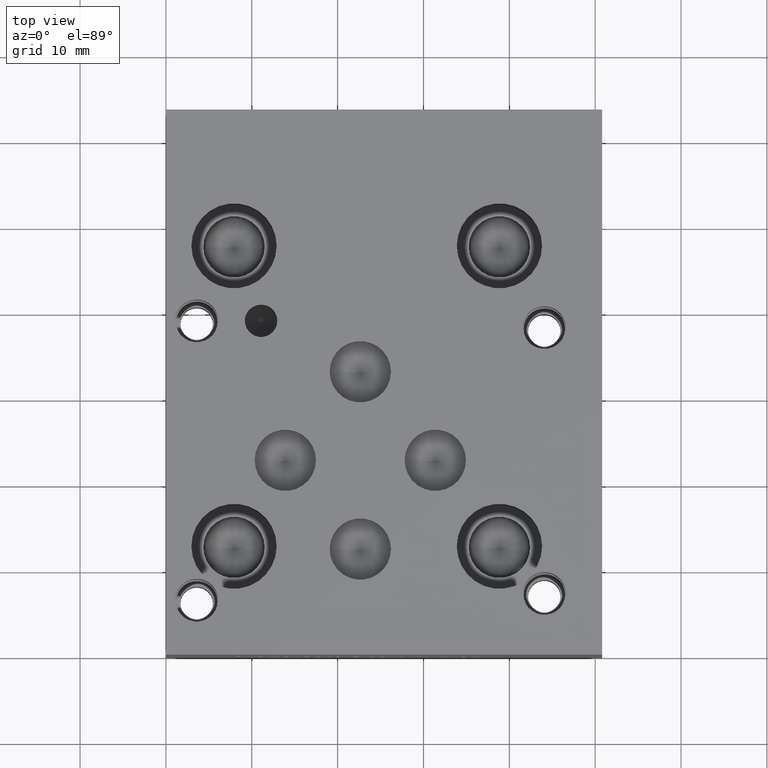
[diagram: clean part render]
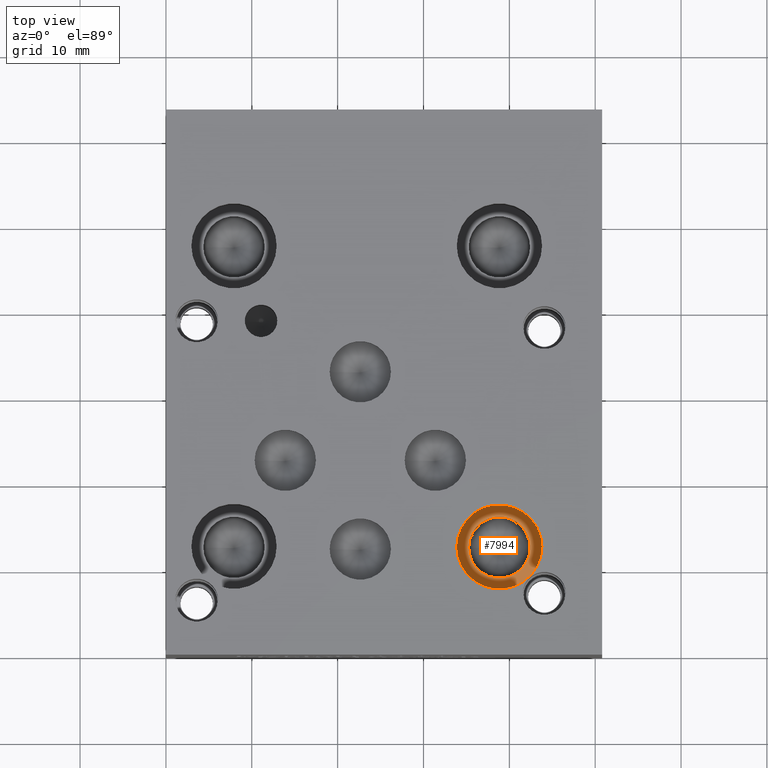
[diagram: same view with one face highlighted and labeled with its STEP entity id]
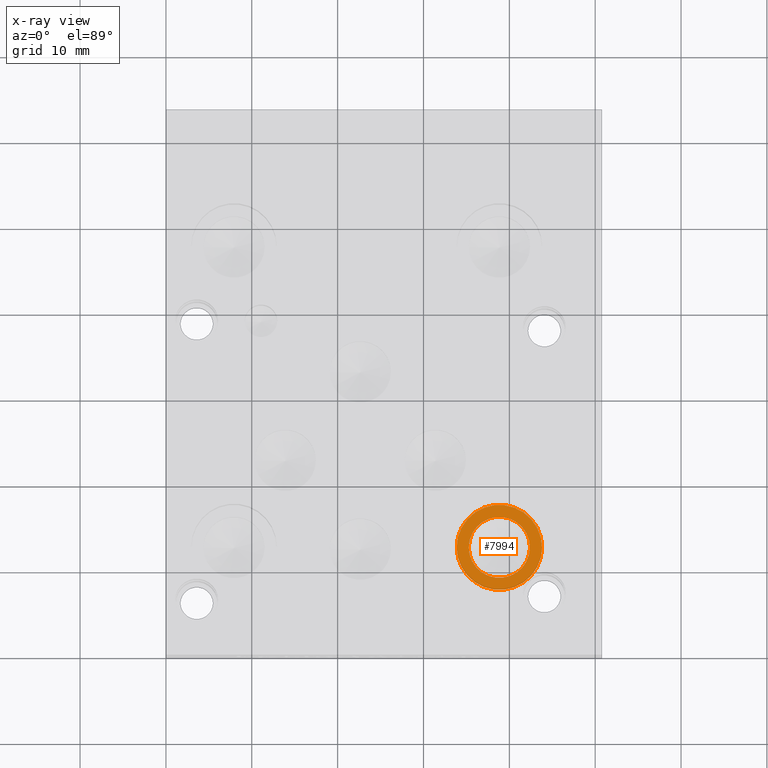
[diagram: x-ray of the same camera — body ghosted, the highlighted face saturated]
A machine part, top view. The second image highlights one B-rep face of the part: STEP entity #7994.
The next image is the same camera in x-ray: the body ghosted, the highlighted face saturated — about 0% of this face is hidden behind the body in this view.
In plain terms, the highlighted planar face has unit normal (0, 0, 1).
Its self-contained STEP definition (entity closure, byte-faithful):
#105=CIRCLE('',#8393,4.9657);
#106=CIRCLE('',#8394,4.9657);
#107=CIRCLE('',#8395,3.5687);
#247=FACE_BOUND('',#1355,.T.);
#913=FACE_OUTER_BOUND('',#1354,.T.);
#1354=EDGE_LOOP('',(#6813,#6814));
#1355=EDGE_LOOP('',(#6815));
#3679=VERTEX_POINT('',#13402);
#3680=VERTEX_POINT('',#13403);
#3681=VERTEX_POINT('',#13406);
#4751=EDGE_CURVE('',#3679,#3680,#105,.T.);
#4752=EDGE_CURVE('',#3680,#3679,#106,.T.);
#4753=EDGE_CURVE('',#3681,#3681,#107,.T.);
#6813=ORIENTED_EDGE('',*,*,#4751,.T.);
#6814=ORIENTED_EDGE('',*,*,#4752,.T.);
#6815=ORIENTED_EDGE('',*,*,#4753,.F.);
#7302=PLANE('',#8392);
#7994=ADVANCED_FACE('',(#913,#247),#7302,.T.);
#8392=AXIS2_PLACEMENT_3D('',#13401,#9933,#9934);
#8393=AXIS2_PLACEMENT_3D('',#13404,#9935,#9936);
#8394=AXIS2_PLACEMENT_3D('',#13405,#9937,#9938);
#8395=AXIS2_PLACEMENT_3D('',#13407,#9939,#9940);
#9933=DIRECTION('center_axis',(0.,0.,1.));
#9934=DIRECTION('ref_axis',(1.,0.,0.));
#9935=DIRECTION('center_axis',(0.,0.,1.));
#9936=DIRECTION('ref_axis',(1.,0.,0.));
#9937=DIRECTION('center_axis',(0.,0.,1.));
#9938=DIRECTION('ref_axis',(1.,0.,0.));
#9939=DIRECTION('center_axis',(0.,0.,1.));
#9940=DIRECTION('ref_axis',(1.,0.,0.));
#13401=CARTESIAN_POINT('Origin',(38.8366,12.6238,17.526));
#13402=CARTESIAN_POINT('',(43.8023,12.6238,17.526));
#13403=CARTESIAN_POINT('',(33.8709,12.6238,17.526));
#13404=CARTESIAN_POINT('Origin',(38.8366,12.6238,17.526));
#13405=CARTESIAN_POINT('Origin',(38.8366,12.6238,17.526));
#13406=CARTESIAN_POINT('',(35.2679,12.6238,17.526));
#13407=CARTESIAN_POINT('Origin',(38.8366,12.6238,17.526));